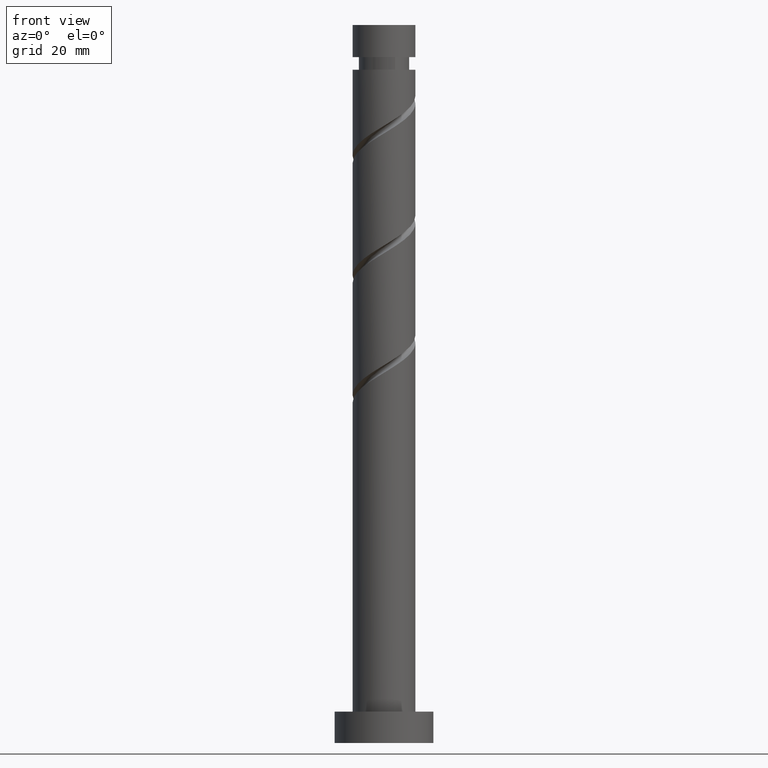
[diagram: clean part render]
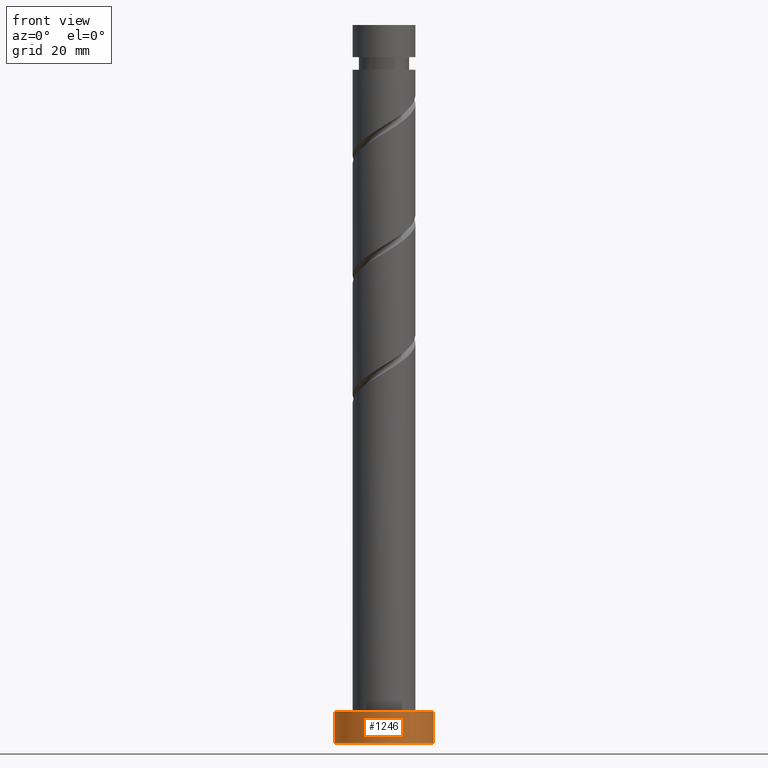
[diagram: same view with one face highlighted and labeled with its STEP entity id]
A machine part, front view. The second image highlights one B-rep face of the part: STEP entity #1246.
In plain terms, the highlighted cylindrical surface (partial cylindrical patch) has radius 11 mm, axis along (-0, -0, -1).
Its self-contained STEP definition (entity closure, byte-faithful):
#23 = VERTEX_POINT ( 'NONE', #1248 ) ;
#33 = FACE_OUTER_BOUND ( 'NONE', #1172, .T. ) ;
#110 = CARTESIAN_POINT ( 'NONE',  ( -11.00000000000000000, 0.000000000000000000, 7.000000000000000000 ) ) ;
#118 = CARTESIAN_POINT ( 'NONE',  ( -11.00000000000000000, 0.000000000000000000, 7.000000000000000000 ) ) ;
#235 = LINE ( 'NONE', #118, #663 ) ;
#240 = EDGE_CURVE ( 'NONE', #1627, #1009, #1282, .T. ) ;
#388 = EDGE_CURVE ( 'NONE', #23, #1009, #1239, .T. ) ;
#436 = AXIS2_PLACEMENT_3D ( 'NONE', #878, #1155, #1278 ) ;
#487 = EDGE_CURVE ( 'NONE', #489, #23, #235, .T. ) ;
#489 = VERTEX_POINT ( 'NONE', #110 ) ;
#551 = ORIENTED_EDGE ( 'NONE', *, *, #240, .F. ) ;
#566 = DIRECTION ( 'NONE',  ( 1.000000000000000000, 0.000000000000000000, 0.000000000000000000 ) ) ;
#573 = CARTESIAN_POINT ( 'NONE',  ( 0.000000000000000000, 0.000000000000000000, 0.000000000000000000 ) ) ;
#587 = AXIS2_PLACEMENT_3D ( 'NONE', #982, #1486, #1371 ) ;
#621 = CARTESIAN_POINT ( 'NONE',  ( 11.00000000000000000, 1.347111479062088405E-15, 7.000000000000000000 ) ) ;
#657 = CYLINDRICAL_SURFACE ( 'NONE', #436, 11.00000000000000000 ) ;
#658 = EDGE_CURVE ( 'NONE', #489, #1627, #1584, .T. ) ;
#663 = VECTOR ( 'NONE', #1632, 1000.000000000000000 ) ;
#670 = CARTESIAN_POINT ( 'NONE',  ( 11.00000000000000000, 1.347111479062088405E-15, 7.000000000000000000 ) ) ;
#693 = AXIS2_PLACEMENT_3D ( 'NONE', #573, #1466, #566 ) ;
#720 = CARTESIAN_POINT ( 'NONE',  ( 11.00000000000000000, 1.347111479062088405E-15, 0.000000000000000000 ) ) ;
#878 = CARTESIAN_POINT ( 'NONE',  ( 0.000000000000000000, 0.000000000000000000, 7.000000000000000000 ) ) ;
#982 = CARTESIAN_POINT ( 'NONE',  ( 0.000000000000000000, 0.000000000000000000, 7.000000000000000000 ) ) ;
#1009 = VERTEX_POINT ( 'NONE', #720 ) ;
#1061 = ORIENTED_EDGE ( 'NONE', *, *, #658, .F. ) ;
#1155 = DIRECTION ( 'NONE',  ( -0.000000000000000000, -0.000000000000000000, -1.000000000000000000 ) ) ;
#1172 = EDGE_LOOP ( 'NONE', ( #551, #1061, #1589, #1424 ) ) ;
#1195 = DIRECTION ( 'NONE',  ( -0.000000000000000000, -0.000000000000000000, -1.000000000000000000 ) ) ;
#1239 = CIRCLE ( 'NONE', #693, 11.00000000000000000 ) ;
#1246 = ADVANCED_FACE ( 'NONE', ( #33 ), #657, .T. ) ;
#1248 = CARTESIAN_POINT ( 'NONE',  ( -11.00000000000000000, 0.000000000000000000, 0.000000000000000000 ) ) ;
#1278 = DIRECTION ( 'NONE',  ( -1.000000000000000000, 0.000000000000000000, 0.000000000000000000 ) ) ;
#1282 = LINE ( 'NONE', #670, #1418 ) ;
#1371 = DIRECTION ( 'NONE',  ( 1.000000000000000000, 0.000000000000000000, 0.000000000000000000 ) ) ;
#1418 = VECTOR ( 'NONE', #1195, 1000.000000000000000 ) ;
#1424 = ORIENTED_EDGE ( 'NONE', *, *, #388, .T. ) ;
#1466 = DIRECTION ( 'NONE',  ( 0.000000000000000000, 0.000000000000000000, 1.000000000000000000 ) ) ;
#1486 = DIRECTION ( 'NONE',  ( 0.000000000000000000, 0.000000000000000000, 1.000000000000000000 ) ) ;
#1584 = CIRCLE ( 'NONE', #587, 11.00000000000000000 ) ;
#1589 = ORIENTED_EDGE ( 'NONE', *, *, #487, .T. ) ;
#1627 = VERTEX_POINT ( 'NONE', #621 ) ;
#1632 = DIRECTION ( 'NONE',  ( -0.000000000000000000, -0.000000000000000000, -1.000000000000000000 ) ) ;